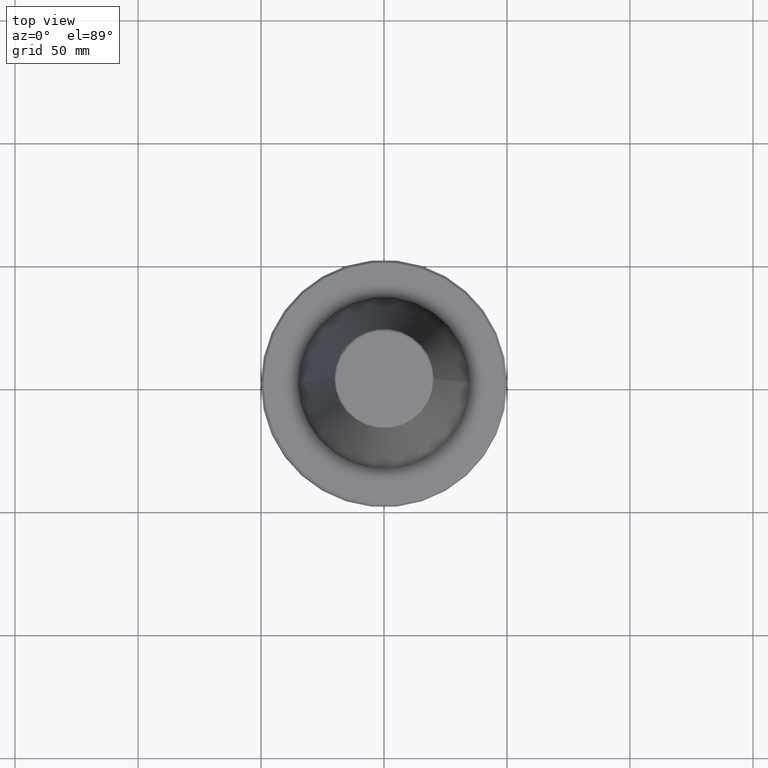
[diagram: clean part render]
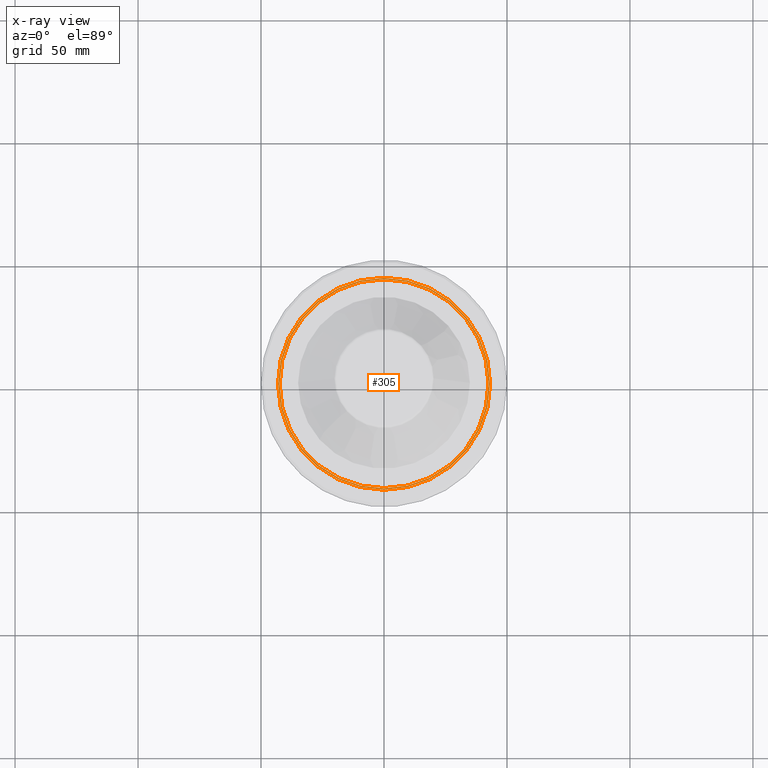
[diagram: x-ray — body ghosted, one internal face saturated and labeled with its STEP entity id]
A machine part, top view, then the same camera in x-ray: the body is ghosted and one INTERNAL B-rep face — a face not visible from any outside direction — is saturated and labeled: STEP entity #305.
In plain terms, the highlighted planar face has unit normal (0, 0, -1).
Its self-contained STEP definition (entity closure, byte-faithful):
#3 = FACE_BOUND ( 'NONE', #392, .T. ) ;
#28 = EDGE_CURVE ( 'NONE', #160, #808, #479, .T. ) ;
#43 = ORIENTED_EDGE ( 'NONE', *, *, #320, .T. ) ;
#78 = DIRECTION ( 'NONE',  ( 0.0000000000000000000, 0.0000000000000000000, -1.000000000000000000 ) ) ;
#131 = DIRECTION ( 'NONE',  ( 1.000000000000000000, 0.0000000000000000000, 0.0000000000000000000 ) ) ;
#160 = VERTEX_POINT ( 'NONE', #848 ) ;
#218 = VERTEX_POINT ( 'NONE', #317 ) ;
#247 = DIRECTION ( 'NONE',  ( -0.0000000000000000000, -0.0000000000000000000, 1.000000000000000000 ) ) ;
#274 = FACE_OUTER_BOUND ( 'NONE', #1081, .T. ) ;
#276 = CARTESIAN_POINT ( 'NONE',  ( 0.0000000000000000000, 0.0000000000000000000, -26.70000000000072400 ) ) ;
#299 = AXIS2_PLACEMENT_3D ( 'NONE', #429, #247, #928 ) ;
#304 = AXIS2_PLACEMENT_3D ( 'NONE', #733, #1166, #674 ) ;
#305 = ADVANCED_FACE ( 'NONE', ( #3, #274 ), #657, .F. ) ;
#317 = CARTESIAN_POINT ( 'NONE',  ( 43.07217782648986300, 5.699027233244213700E-015, -26.70000000000072400 ) ) ;
#320 = EDGE_CURVE ( 'NONE', #882, #218, #1033, .T. ) ;
#339 = EDGE_CURVE ( 'NONE', #218, #882, #755, .T. ) ;
#392 = EDGE_LOOP ( 'NONE', ( #633, #538 ) ) ;
#418 = CARTESIAN_POINT ( 'NONE',  ( 0.0000000000000000000, 43.07217782648986300, -26.70000000000072400 ) ) ;
#429 = CARTESIAN_POINT ( 'NONE',  ( 0.0000000000000000000, 0.0000000000000000000, -26.70000000000072400 ) ) ;
#479 = CIRCLE ( 'NONE', #304, 42.49999999999965200 ) ;
#538 = ORIENTED_EDGE ( 'NONE', *, *, #649, .F. ) ;
#554 = DIRECTION ( 'NONE',  ( -0.0000000000000000000, -0.0000000000000000000, 1.000000000000000000 ) ) ;
#633 = ORIENTED_EDGE ( 'NONE', *, *, #28, .F. ) ;
#649 = EDGE_CURVE ( 'NONE', #808, #160, #991, .T. ) ;
#657 = PLANE ( 'NONE',  #1047 ) ;
#674 = DIRECTION ( 'NONE',  ( 1.000000000000000000, 0.0000000000000000000, 0.0000000000000000000 ) ) ;
#690 = ORIENTED_EDGE ( 'NONE', *, *, #339, .T. ) ;
#733 = CARTESIAN_POINT ( 'NONE',  ( 0.0000000000000000000, 0.0000000000000000000, -26.70000000000072400 ) ) ;
#755 = CIRCLE ( 'NONE', #299, 43.07217782648986300 ) ;
#778 = AXIS2_PLACEMENT_3D ( 'NONE', #276, #1096, #1327 ) ;
#808 = VERTEX_POINT ( 'NONE', #1313 ) ;
#848 = CARTESIAN_POINT ( 'NONE',  ( 42.49999999999965200, 0.0000000000000000000, -26.70000000000072400 ) ) ;
#882 = VERTEX_POINT ( 'NONE', #1183 ) ;
#908 = AXIS2_PLACEMENT_3D ( 'NONE', #1141, #554, #131 ) ;
#928 = DIRECTION ( 'NONE',  ( 1.000000000000000000, 0.0000000000000000000, 0.0000000000000000000 ) ) ;
#991 = CIRCLE ( 'NONE', #778, 42.49999999999965200 ) ;
#1033 = CIRCLE ( 'NONE', #908, 43.07217782648986300 ) ;
#1047 = AXIS2_PLACEMENT_3D ( 'NONE', #418, #78, #1333 ) ;
#1081 = EDGE_LOOP ( 'NONE', ( #43, #690 ) ) ;
#1096 = DIRECTION ( 'NONE',  ( -0.0000000000000000000, -0.0000000000000000000, 1.000000000000000000 ) ) ;
#1141 = CARTESIAN_POINT ( 'NONE',  ( 0.0000000000000000000, 0.0000000000000000000, -26.70000000000072400 ) ) ;
#1166 = DIRECTION ( 'NONE',  ( -0.0000000000000000000, -0.0000000000000000000, 1.000000000000000000 ) ) ;
#1183 = CARTESIAN_POINT ( 'NONE',  ( -43.07217782648986300, 0.0000000000000000000, -26.70000000000072400 ) ) ;
#1313 = CARTESIAN_POINT ( 'NONE',  ( -42.49999999999965200, 5.204748896376208300E-015, -26.70000000000072400 ) ) ;
#1327 = DIRECTION ( 'NONE',  ( 1.000000000000000000, 0.0000000000000000000, 0.0000000000000000000 ) ) ;
#1333 = DIRECTION ( 'NONE',  ( -1.000000000000000000, 0.0000000000000000000, -0.0000000000000000000 ) ) ;